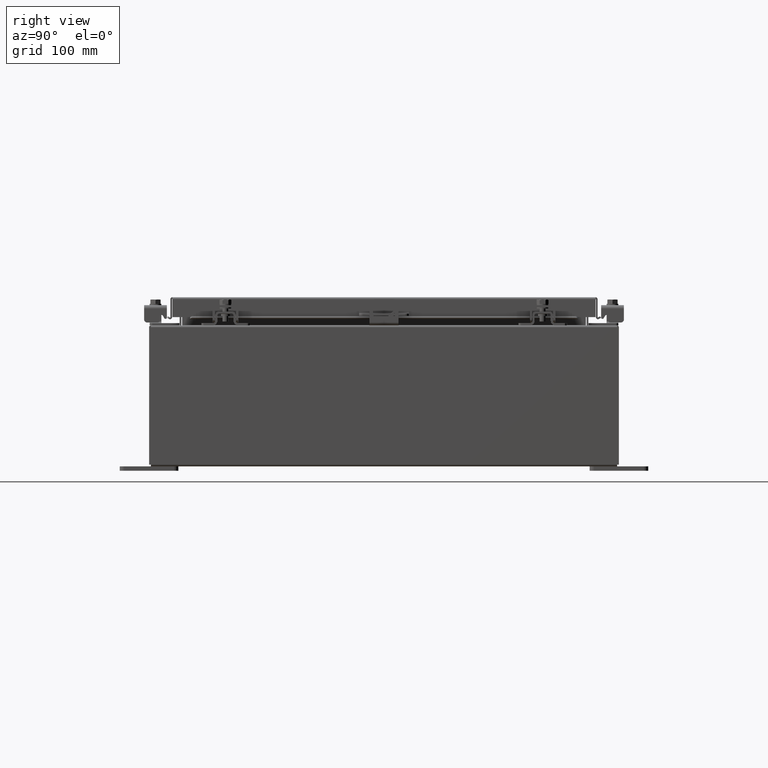
[diagram: clean part render]
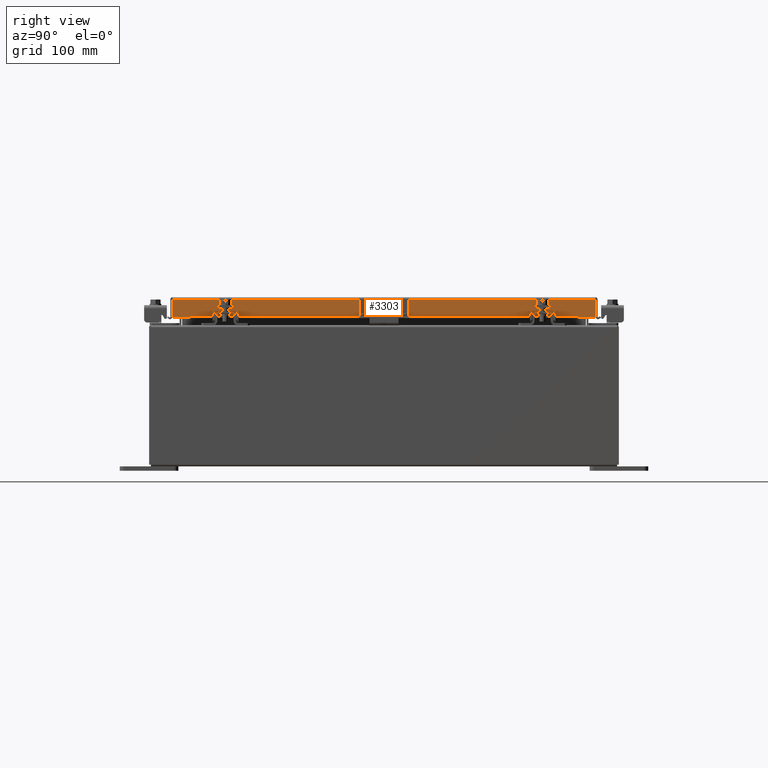
[diagram: same view with one face highlighted and labeled with its STEP entity id]
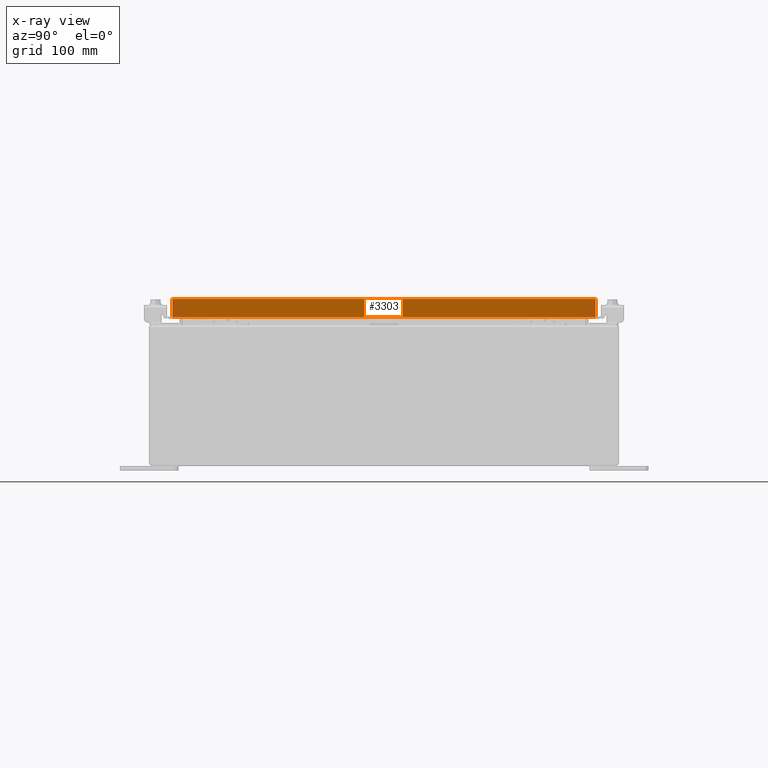
[diagram: x-ray of the same camera — body ghosted, the highlighted face saturated]
A machine part, right view. The second image highlights one B-rep face of the part: STEP entity #3303.
The next image is the same camera in x-ray: the body ghosted, the highlighted face saturated — about 0% of this face is hidden behind the body in this view.
In plain terms, the highlighted planar face has unit normal (1, 0, 0).
Its self-contained STEP definition (entity closure, byte-faithful):
#352 = DIRECTION ( 'NONE',  ( -2.818880942772360100E-015, -6.982962677686267500E-015, 1.000000000000000000 ) ) ;
#582 = FACE_OUTER_BOUND ( 'NONE', #1937, .T. ) ;
#732 = VERTEX_POINT ( 'NONE', #21734 ) ;
#1937 = EDGE_LOOP ( 'NONE', ( #21249, #24680, #25870, #21424, #9763, #15112 ) ) ;
#2193 = VECTOR ( 'NONE', #28590, 39.37007874015748100 ) ;
#3303 = ADVANCED_FACE ( 'NONE', ( #582 ), #24976, .T. ) ;
#3922 = VECTOR ( 'NONE', #352, 39.37007874015748100 ) ;
#4119 = EDGE_CURVE ( 'NONE', #732, #13197, #16186, .T. ) ;
#4763 = VECTOR ( 'NONE', #27254, 39.37007874015748100 ) ;
#6002 = EDGE_CURVE ( 'NONE', #13197, #14405, #15022, .T. ) ;
#6712 = VERTEX_POINT ( 'NONE', #13297 ) ;
#7171 = VERTEX_POINT ( 'NONE', #14967 ) ;
#7316 = CARTESIAN_POINT ( 'NONE',  ( 9.078000000000001200, -9.093999999999999400, -0.8499999999999996400 ) ) ;
#7440 = EDGE_CURVE ( 'NONE', #6712, #7171, #9974, .T. ) ;
#7757 = EDGE_CURVE ( 'NONE', #24980, #732, #20301, .T. ) ;
#8171 = VECTOR ( 'NONE', #8243, 39.37007874015748100 ) ;
#8243 = DIRECTION ( 'NONE',  ( 0.0000000000000000000, -1.000000000000000000, 0.0000000000000000000 ) ) ;
#9251 = CARTESIAN_POINT ( 'NONE',  ( 9.078000000000001200, -9.005157864376263500, -0.8499999999999996400 ) ) ;
#9622 = DIRECTION ( 'NONE',  ( 0.0000000000000000000, -1.000000000000000000, 0.0000000000000000000 ) ) ;
#9763 = ORIENTED_EDGE ( 'NONE', *, *, #7440, .T. ) ;
#9974 = LINE ( 'NONE', #11642, #3922 ) ;
#11642 = CARTESIAN_POINT ( 'NONE',  ( 9.077999999999999400, 9.005157864376267100, 8.873329612811152000E-014 ) ) ;
#12017 = CARTESIAN_POINT ( 'NONE',  ( 9.077999999999999400, -9.005157864376268900, -0.07469999999999978000 ) ) ;
#13021 = CARTESIAN_POINT ( 'NONE',  ( 9.077999999999999400, 5.269036046721535500E-018, -0.08770000000000061100 ) ) ;
#13197 = VERTEX_POINT ( 'NONE', #9251 ) ;
#13297 = CARTESIAN_POINT ( 'NONE',  ( 9.078000000000001200, 9.005157864376274200, -0.8499999999999996400 ) ) ;
#14405 = VERTEX_POINT ( 'NONE', #27594 ) ;
#14492 = VECTOR ( 'NONE', #28999, 39.37007874015748100 ) ;
#14967 = CARTESIAN_POINT ( 'NONE',  ( 9.077999999999999400, 9.005157864376268900, -0.08770000000000061100 ) ) ;
#15022 = LINE ( 'NONE', #12017, #2193 ) ;
#15112 = ORIENTED_EDGE ( 'NONE', *, *, #20722, .T. ) ;
#15212 = LINE ( 'NONE', #13021, #14492 ) ;
#15475 = CARTESIAN_POINT ( 'NONE',  ( 9.077999999999999400, 0.0000000000000000000, 2.585061485449906600E-014 ) ) ;
#16186 = LINE ( 'NONE', #19846, #4763 ) ;
#17809 = DIRECTION ( 'NONE',  ( 1.000000000000000000, 0.0000000000000000000, 2.818880942772360100E-015 ) ) ;
#18057 = VECTOR ( 'NONE', #9622, 39.37007874015748100 ) ;
#18251 = DIRECTION ( 'NONE',  ( 2.818880942772360100E-015, 0.0000000000000000000, -1.000000000000000000 ) ) ;
#18774 = LINE ( 'NONE', #7316, #18057 ) ;
#19846 = CARTESIAN_POINT ( 'NONE',  ( 9.078000000000001200, -9.093999999999999400, -0.8499999999999996400 ) ) ;
#20301 = LINE ( 'NONE', #24204, #8171 ) ;
#20722 = EDGE_CURVE ( 'NONE', #7171, #14405, #15212, .T. ) ;
#21221 = AXIS2_PLACEMENT_3D ( 'NONE', #15475, #17809, #18251 ) ;
#21249 = ORIENTED_EDGE ( 'NONE', *, *, #6002, .F. ) ;
#21424 = ORIENTED_EDGE ( 'NONE', *, *, #29115, .F. ) ;
#21734 = CARTESIAN_POINT ( 'NONE',  ( 9.077999999999999400, -8.255157864376260000, -0.8500000000000013100 ) ) ;
#24204 = CARTESIAN_POINT ( 'NONE',  ( 9.077999999999999400, 8.255157864376270600, -0.8500000000000013100 ) ) ;
#24680 = ORIENTED_EDGE ( 'NONE', *, *, #4119, .F. ) ;
#24976 = PLANE ( 'NONE',  #21221 ) ;
#24980 = VERTEX_POINT ( 'NONE', #27778 ) ;
#25870 = ORIENTED_EDGE ( 'NONE', *, *, #7757, .F. ) ;
#27254 = DIRECTION ( 'NONE',  ( 0.0000000000000000000, -1.000000000000000000, 0.0000000000000000000 ) ) ;
#27594 = CARTESIAN_POINT ( 'NONE',  ( 9.077999999999999400, -9.005157864376268900, -0.08770000000000115200 ) ) ;
#27778 = CARTESIAN_POINT ( 'NONE',  ( 9.077999999999999400, 8.255157864376270600, -0.8500000000000013100 ) ) ;
#28590 = DIRECTION ( 'NONE',  ( -2.818880942772360100E-015, -6.982962677686267500E-015, 1.000000000000000000 ) ) ;
#28999 = DIRECTION ( 'NONE',  ( 1.693590113897317100E-031, -1.000000000000000000, -6.008022858289562200E-017 ) ) ;
#29115 = EDGE_CURVE ( 'NONE', #6712, #24980, #18774, .T. ) ;